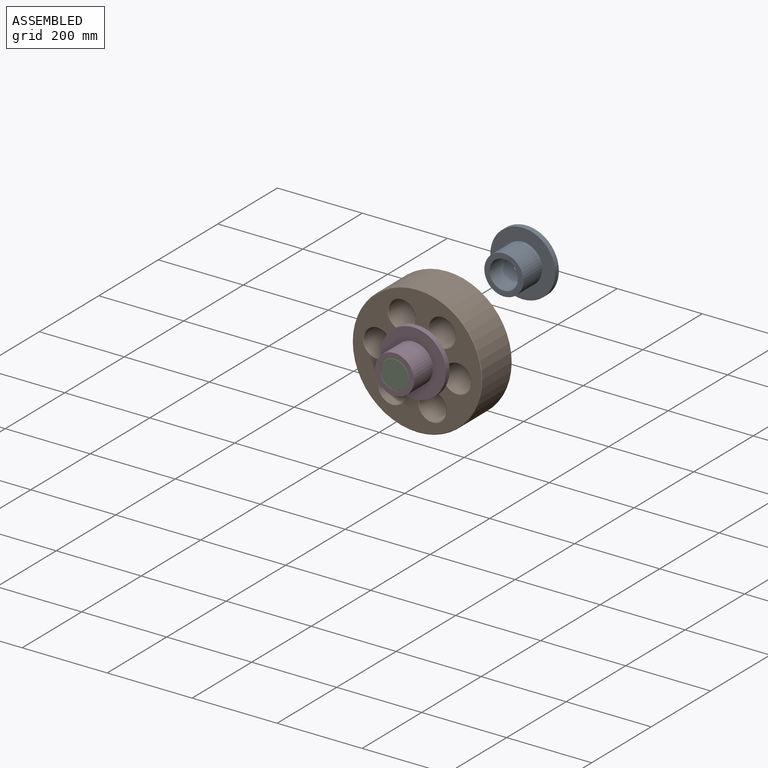
[diagram: assembled view]
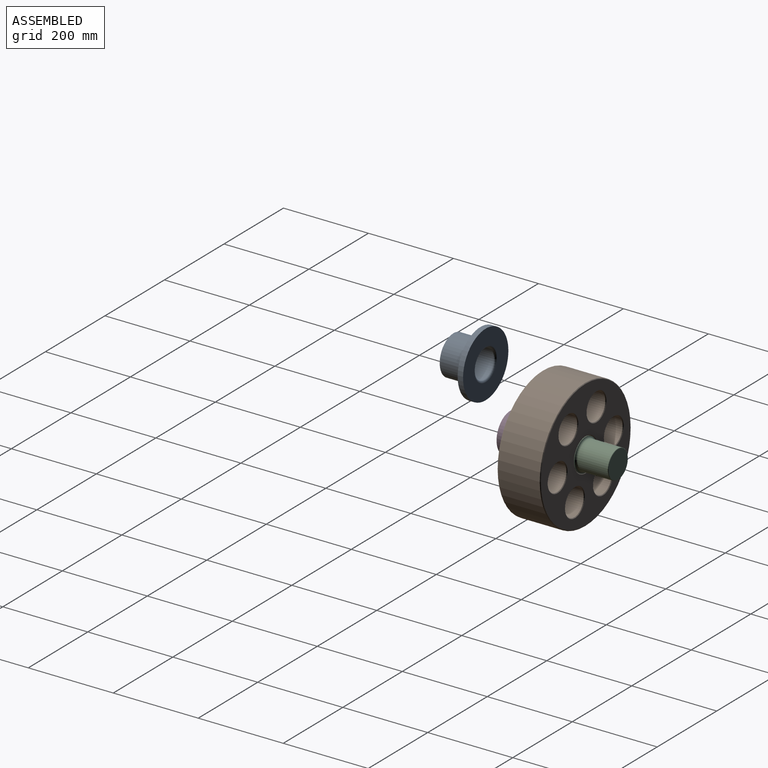
[diagram: assembled view, second angle]
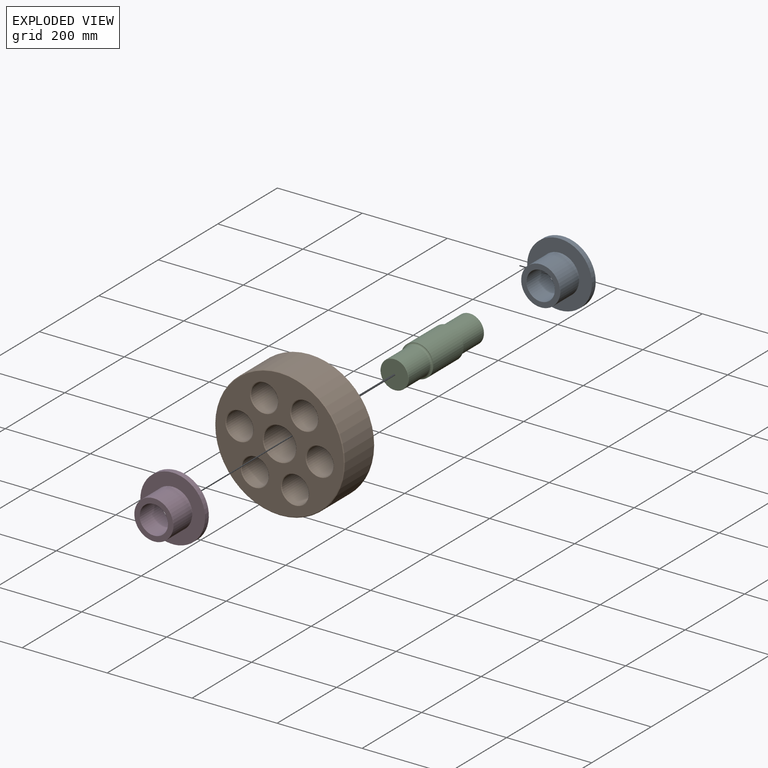
[diagram: exploded view]
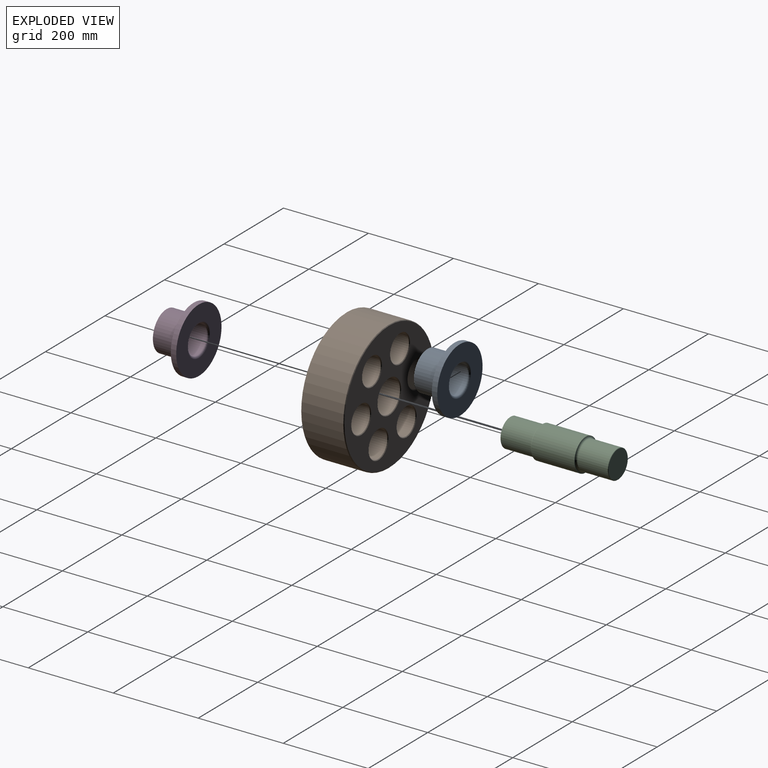
[diagram: exploded view, second angle]
ASSEMBLY  parts=4 mates=3
PART A: 10 faces, bbox 152.4x76.2x152.4 mm
  f0: cylinder r=76.2mm len=152.4mm, axis (0,1,0), area 6080.5mm2, adj f1,f2
  f1: plane 152.4x152.4mm, normal (0,-1,0), area 11524.1mm2, adj f0,f7
  f2: plane 152.4x152.4mm, normal (0,1,0), area 13681.1mm2, adj f0,f6
  f3: cylinder r=46.04mm len=92.08mm, axis (0,1,0), area 18235.9mm2, adj f7,f9
  f4: plane 91.57x91.57mm, normal (0,-1,0), area 3040.2mm2, adj f8,f9
  f5: cylinder r=33.34mm len=71.18mm, axis (0,1,0), area 14910.5mm2, adj f6,f8
  f6: torus R=38.1mm, axis (0,-1,0), area 1648.3mm2, adj f2,f5
  f7: cone r=46.24mm half-angle=45deg, axis (0,1,0), area 83.3mm2, adj f1,f3
  f8: cone r=33.59mm half-angle=45deg, axis (0,-1,0), area 75.5mm2, adj f4,f5
  f9: cone r=45.78mm half-angle=45deg, axis (0,1,0), area 103.6mm2, adj f3,f4
PART B: 26 faces, bbox 304.8x101.6x304.8 mm
  f0: cylinder r=152.4mm len=304.8mm, axis (0,1,0), area 94369.2mm2, adj f17,f25
  f1: plane 301.75x301.75mm, normal (0,-1,0), area 45711.9mm2, adj f18,f19,f20,f21,f22,f23,f24,f25
  f2: plane 301.75x301.75mm, normal (0,1,0), area 45711.9mm2, adj f10,f11,f12,f13,f14,f15,f16,f17
  f3: cylinder r=31.75mm len=98.55mm, axis (0,-1,0), area 19660.3mm2, adj f16,f24
  f4: cylinder r=31.75mm len=98.55mm, axis (0,-1,0), area 19660.3mm2, adj f15,f23
  f5: cylinder r=31.75mm len=98.55mm, axis (0,-1,0), area 19660.3mm2, adj f14,f22
  f6: cylinder r=31.75mm len=98.55mm, axis (0,-1,0), area 19660.3mm2, adj f13,f21
  f7: cylinder r=31.75mm len=98.55mm, axis (0,-1,0), area 19660.3mm2, adj f12,f20
  f8: cylinder r=31.75mm len=98.55mm, axis (0,-1,0), area 19660.3mm2, adj f11,f19
  f9: cylinder r=38.1mm len=98.55mm, axis (0,-1,0), area 23592.3mm2, adj f10,f18
  f10: cone r=39.62mm half-angle=45deg, axis (0,1,0), area 526.3mm2, adj f2,f9
  f11: cone r=33.27mm half-angle=45deg, axis (0,1,0), area 440.3mm2, adj f2,f8
  f12: cone r=33.27mm half-angle=45deg, axis (0,1,0), area 440.3mm2, adj f2,f7
  f13: cone r=33.27mm half-angle=45deg, axis (0,1,0), area 440.3mm2, adj f2,f6
  f14: cone r=33.27mm half-angle=45deg, axis (0,1,0), area 440.3mm2, adj f2,f5
  f15: cone r=33.27mm half-angle=45deg, axis (0,1,0), area 440.3mm2, adj f2,f4
  f16: cone r=33.27mm half-angle=45deg, axis (0,1,0), area 440.3mm2, adj f2,f3
  f17: cone r=152.4mm half-angle=45deg, axis (0,-1,0), area 2053.5mm2, adj f0,f2
  f18: cone r=38.1mm half-angle=45deg, axis (0,-1,0), area 526.3mm2, adj f1,f9
  f19: cone r=31.75mm half-angle=45deg, axis (0,-1,0), area 440.3mm2, adj f1,f8
  f20: cone r=31.75mm half-angle=45deg, axis (0,-1,0), area 440.3mm2, adj f1,f7
  f21: cone r=31.75mm half-angle=45deg, axis (0,-1,0), area 440.3mm2, adj f1,f6
  f22: cone r=31.75mm half-angle=45deg, axis (0,-1,0), area 440.3mm2, adj f1,f5
  f23: cone r=31.75mm half-angle=45deg, axis (0,-1,0), area 440.3mm2, adj f1,f4
  f24: cone r=31.75mm half-angle=45deg, axis (0,-1,0), area 440.3mm2, adj f1,f3
  f25: cone r=150.88mm half-angle=45deg, axis (0,1,0), area 2053.5mm2, adj f0,f1
PART C: 9 faces, bbox 89.8x254x89.8 mm
  f0: cylinder r=38.1mm len=101.6mm, axis (0,1,0), area 24322mm2, adj f7,f8
  f1: cylinder r=33.34mm len=70.68mm, axis (0,1,0), area 14804.1mm2, adj f6,f8
  f2: plane 65.15x65.15mm, normal (0,-1,0), area 3333.7mm2, adj f6
  f3: cylinder r=33.34mm len=70.68mm, axis (0,-1,0), area 14804.1mm2, adj f5,f7
  f4: plane 65.15x65.15mm, normal (0,1,0), area 3333.7mm2, adj f5
  f5: cone r=33.34mm half-angle=45deg, axis (0,-1,0), area 223.1mm2, adj f3,f4
  f6: cone r=32.58mm half-angle=45deg, axis (0,1,0), area 223.1mm2, adj f1,f2
  f7: torus R=38.1mm, axis (0,-1,0), area 1648.3mm2, adj f0,f3
  f8: torus R=38.1mm, axis (0,-1,0), area 1648.3mm2, adj f0,f1
PART D: same geometry as A
PLACE A t=(309.48,52.99,308)mm
PLACE B rot(axis=(0,-1,0),52.4deg) t=(73.95,72.64,44.91)mm
PLACE C t=(73.95,72.64,44.91)mm fixed
PLACE D rot(axis=(0,1,0),118.9deg) t=(73.95,21.84,44.91)mm
MATE planar D.f3 <-> C.f1  axis (0,-1,0) through (73.95,-54.36,44.91)mm
MATE cylindrical C.f1 <-> D.f3  axis (0,1,0) through (73.95,17.07,44.91)mm
MATE revolute C.f0 <-> B.f9  axis (0,1,0) through (73.95,72.64,44.91)mm
